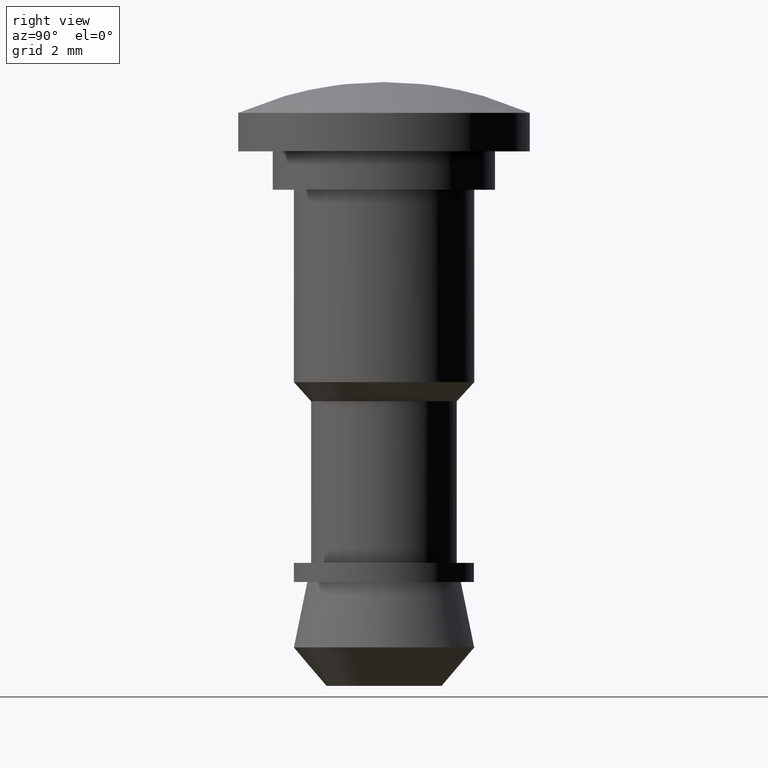
[diagram: clean part render]
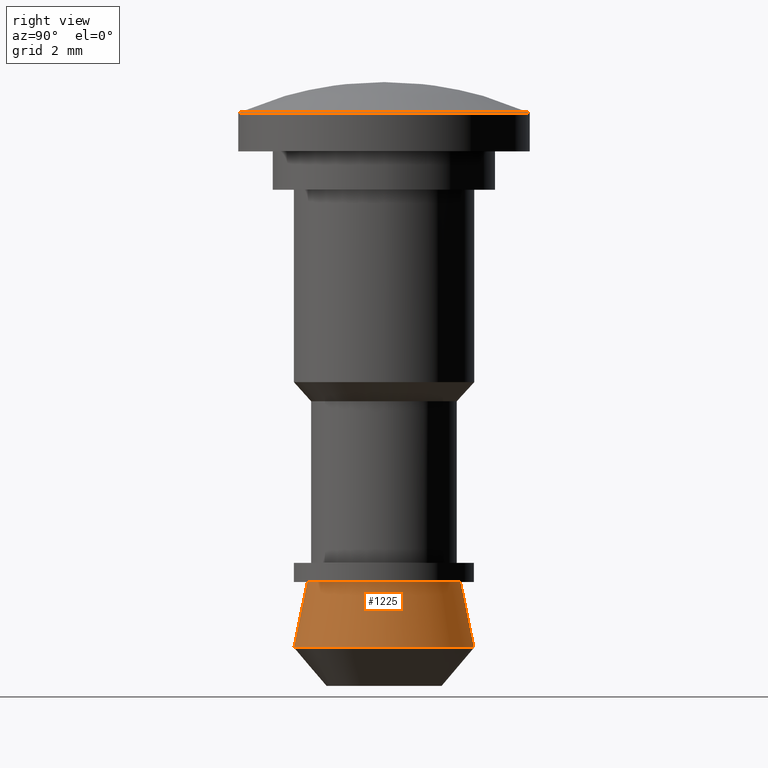
[diagram: same view with one face highlighted and labeled with its STEP entity id]
A machine part, right view. The second image highlights one B-rep face of the part: STEP entity #1225.
In plain terms, the highlighted face is a freeform B-spline surface patch.
Its self-contained STEP definition (entity closure, byte-faithful):
#1116=CARTESIAN_POINT('',(0.227203004284343,1.978246015710497,-10.157502367688023));
#1117=CARTESIAN_POINT('',(1.885626516785225,1.787774860240653,-10.157502367688023));
#1118=CARTESIAN_POINT('',(1.987536403913495,0.121562934107821,-10.157502367688020));
#1119=CARTESIAN_POINT('',(2.109099338021316,-1.865973469805673,-10.157502367688023));
#1120=CARTESIAN_POINT('',(0.121562934107821,-1.987536403913495,-10.157502367688020));
#1121=CARTESIAN_POINT('',(0.269157620662085,2.343542913748256,-11.943465365598799));
#1122=CARTESIAN_POINT('',(2.233820579590903,2.117899933487038,-11.943465365598799));
#1123=CARTESIAN_POINT('',(2.354548836806457,0.144010376131358,-11.943465365598801));
#1124=CARTESIAN_POINT('',(2.498559212937815,-2.210538460675099,-11.943465365598799));
#1125=CARTESIAN_POINT('',(0.144010376131358,-2.354548836806457,-11.943465365598801));
#1133=(BOUNDED_SURFACE()B_SPLINE_SURFACE(2,1,((#1116,#1121),(#1117,#1122),(#1118,#1123),(#1119,#1124),(#1120,#1125)),.UNSPECIFIED.,.F.,.F.,.U.)B_SPLINE_SURFACE_WITH_KNOTS((3,2,3),(2,2),(0.0,3.439422152017914,7.347856415674634),(0.0,1.0),.UNSPECIFIED.)GEOMETRIC_REPRESENTATION_ITEM()RATIONAL_B_SPLINE_SURFACE(((0.938140952186599,0.938140952186599),(0.742253967444162,0.742253967444162),(1.0,1.0),(0.707106781186548,0.707106781186548),(1.0,1.0)))REPRESENTATION_ITEM('')SURFACE());
#1134=CARTESIAN_POINT('',(0.268134337341499,2.334633233307837,-11.899905292479900));
#1135=VERTEX_POINT('',#1134);
#1136=CARTESIAN_POINT('',(2.349980501392750,0.0,-11.899905292479019));
#1137=VERTEX_POINT('',#1136);
#1138=CARTESIAN_POINT('',(0.268134337341499,2.334633233307837,-11.899905292479904));
#1139=CARTESIAN_POINT('',(2.349980501392750,2.095531676072520,-11.899905292479025));
#1140=CARTESIAN_POINT('',(2.349980501392750,0.0,-11.899905292479019));
#1148=(BOUNDED_CURVE()B_SPLINE_CURVE(2,(#1138,#1139,#1140),.UNSPECIFIED.,.F.,.U.)B_SPLINE_CURVE_WITH_KNOTS((3,3),(0.269767755877433,0.500000000000000),.UNSPECIFIED.)CURVE()GEOMETRIC_REPRESENTATION_ITEM()RATIONAL_B_SPLINE_CURVE((0.957343736459039,0.730266147777187,1.0))REPRESENTATION_ITEM(''));
#1149=EDGE_CURVE('',#1135,#1137,#1148,.T.);
#1150=ORIENTED_EDGE('',*,*,#1149,.F.);
#1151=CARTESIAN_POINT('',(0.228201329487757,1.986938386870842,-10.200000000001090));
#1152=VERTEX_POINT('',#1151);
#1153=CARTESIAN_POINT('',(0.228201329487757,1.986938386870842,-10.200000000001090));
#1154=CARTESIAN_POINT('',(0.268134337341499,2.334633233307837,-11.899905292479900));
#1155=QUASI_UNIFORM_CURVE('',1,(#1153,#1154),.UNSPECIFIED.,.F.,.U.);
#1156=EDGE_CURVE('',#1152,#1135,#1155,.T.);
#1157=ORIENTED_EDGE('',*,*,#1156,.F.);
#1158=CARTESIAN_POINT('',(2.0,0.0,-10.199999999999999));
#1159=VERTEX_POINT('',#1158);
#1160=CARTESIAN_POINT('',(0.228201329487757,1.986938386870842,-10.200000000001090));
#1161=CARTESIAN_POINT('',(1.999999999999999,1.783446011425160,-10.200000000000001));
#1162=CARTESIAN_POINT('',(2.0,0.0,-10.199999999999999));
#1170=(BOUNDED_CURVE()B_SPLINE_CURVE(2,(#1160,#1161,#1162),.UNSPECIFIED.,.F.,.U.)B_SPLINE_CURVE_WITH_KNOTS((3,3),(0.269767755877803,0.500000000000000),.UNSPECIFIED.)CURVE()GEOMETRIC_REPRESENTATION_ITEM()RATIONAL_B_SPLINE_CURVE((0.957343736458308,0.730266147777621,1.0))REPRESENTATION_ITEM(''));
#1171=EDGE_CURVE('',#1152,#1159,#1170,.T.);
#1172=ORIENTED_EDGE('',*,*,#1171,.T.);
#1173=CARTESIAN_POINT('',(0.122097079075375,-1.996269596843554,-10.200000000000831));
#1174=VERTEX_POINT('',#1173);
#1175=CARTESIAN_POINT('',(2.0,0.0,-10.199999999999999));
#1176=CARTESIAN_POINT('',(2.000000000000000,-1.881412133800728,-10.200000000000001));
#1177=CARTESIAN_POINT('',(0.122097079075375,-1.996269596843554,-10.200000000000829));
#1185=(BOUNDED_CURVE()B_SPLINE_CURVE(2,(#1175,#1176,#1177),.UNSPECIFIED.,.F.,.U.)B_SPLINE_CURVE_WITH_KNOTS((3,3),(0.500000000000000,0.739332962240992),.UNSPECIFIED.)CURVE()GEOMETRIC_REPRESENTATION_ITEM()RATIONAL_B_SPLINE_CURVE((1.0,0.719603993284309,0.976072041671110))REPRESENTATION_ITEM(''));
#1186=EDGE_CURVE('',#1159,#1174,#1185,.T.);
#1187=ORIENTED_EDGE('',*,*,#1186,.T.);
#1188=CARTESIAN_POINT('',(0.143462680551902,-2.345597283323410,-11.899905085086820));
#1189=VERTEX_POINT('',#1188);
#1190=CARTESIAN_POINT('',(0.122097079075375,-1.996269596843554,-10.200000000000831));
#1191=CARTESIAN_POINT('',(0.143462680551902,-2.345597283323410,-11.899905085086820));
#1192=QUASI_UNIFORM_CURVE('',1,(#1190,#1191),.UNSPECIFIED.,.F.,.U.);
#1193=EDGE_CURVE('',#1174,#1189,#1192,.T.);
#1194=ORIENTED_EDGE('',*,*,#1193,.T.);
#1195=CARTESIAN_POINT('',(0.184377345145986,-2.342736295774616,-11.899905292474889));
#1196=VERTEX_POINT('',#1195);
#1197=CARTESIAN_POINT('',(0.184377345145986,-2.342736295774616,-11.899905292474891));
#1198=CARTESIAN_POINT('',(0.163932401059389,-2.344345347767093,-11.899905292479023));
#1199=CARTESIAN_POINT('',(0.143462680551902,-2.345597283323410,-11.899905085086827));
#1207=(BOUNDED_CURVE()B_SPLINE_CURVE(2,(#1197,#1198,#1199),.UNSPECIFIED.,.F.,.U.)B_SPLINE_CURVE_WITH_KNOTS((3,3),(0.736331300628616,0.739332990840933),.UNSPECIFIED.)CURVE()GEOMETRIC_REPRESENTATION_ITEM()RATIONAL_B_SPLINE_CURVE((0.969723356163153,0.972855505402831,0.976072102966234))REPRESENTATION_ITEM(''));
#1208=EDGE_CURVE('',#1196,#1189,#1207,.T.);
#1209=ORIENTED_EDGE('',*,*,#1208,.F.);
#1210=CARTESIAN_POINT('',(2.349980501392750,0.0,-11.899905292479019));
#1211=CARTESIAN_POINT('',(2.349980501392750,-2.172299631016881,-11.899905292479023));
#1212=CARTESIAN_POINT('',(0.184377345145986,-2.342736295774616,-11.899905292474891));
#1220=(BOUNDED_CURVE()B_SPLINE_CURVE(2,(#1210,#1211,#1212),.UNSPECIFIED.,.F.,.U.)B_SPLINE_CURVE_WITH_KNOTS((3,3),(0.500000000000000,0.736331300628616),.UNSPECIFIED.)CURVE()GEOMETRIC_REPRESENTATION_ITEM()RATIONAL_B_SPLINE_CURVE((1.0,0.723120658610060,0.969723356163153))REPRESENTATION_ITEM(''));
#1221=EDGE_CURVE('',#1137,#1196,#1220,.T.);
#1222=ORIENTED_EDGE('',*,*,#1221,.F.);
#1223=EDGE_LOOP('',(#1150,#1157,#1172,#1187,#1194,#1209,#1222));
#1224=FACE_OUTER_BOUND('',#1223,.T.);
#1225=ADVANCED_FACE('',(#1224),#1133,.T.);